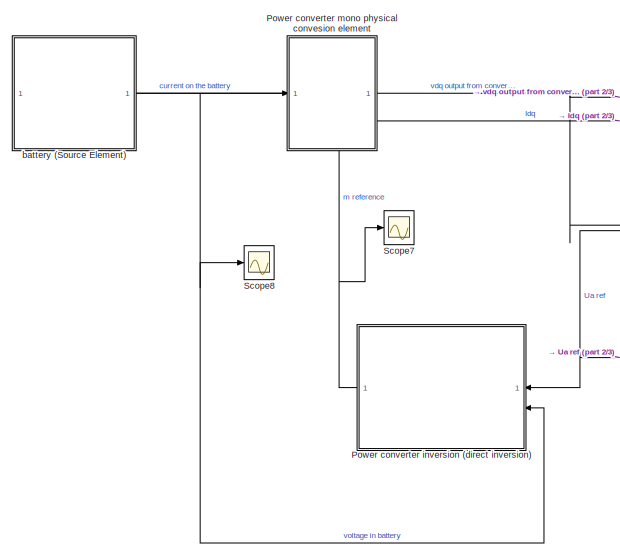
[diagram: root canvas - part 1/3, left side, full height]
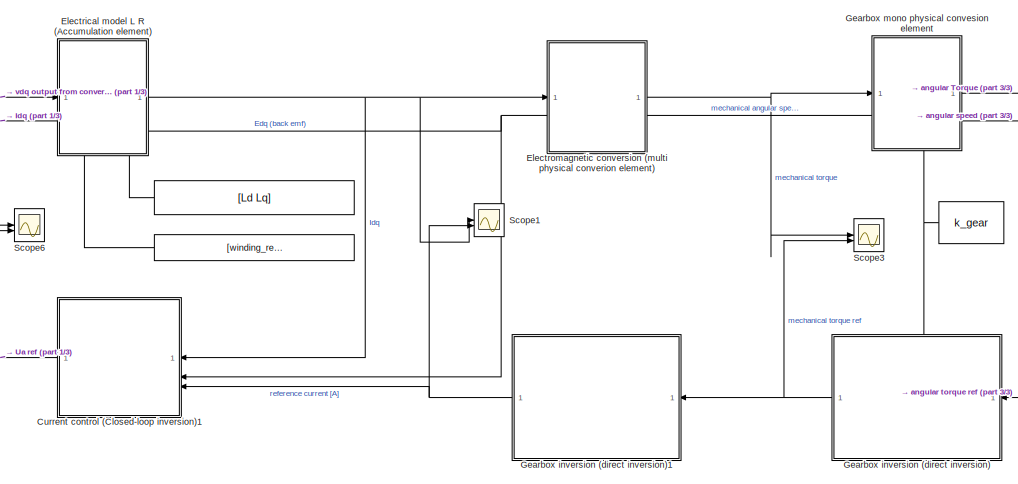
[diagram: root canvas - part 2/3, center side, full height]
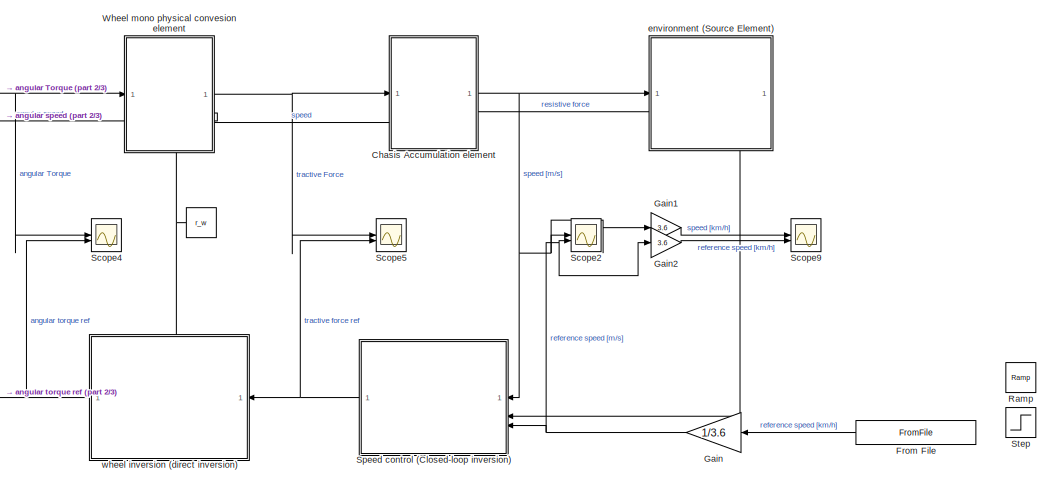
[diagram: root canvas - part 3/3, right side, full height]
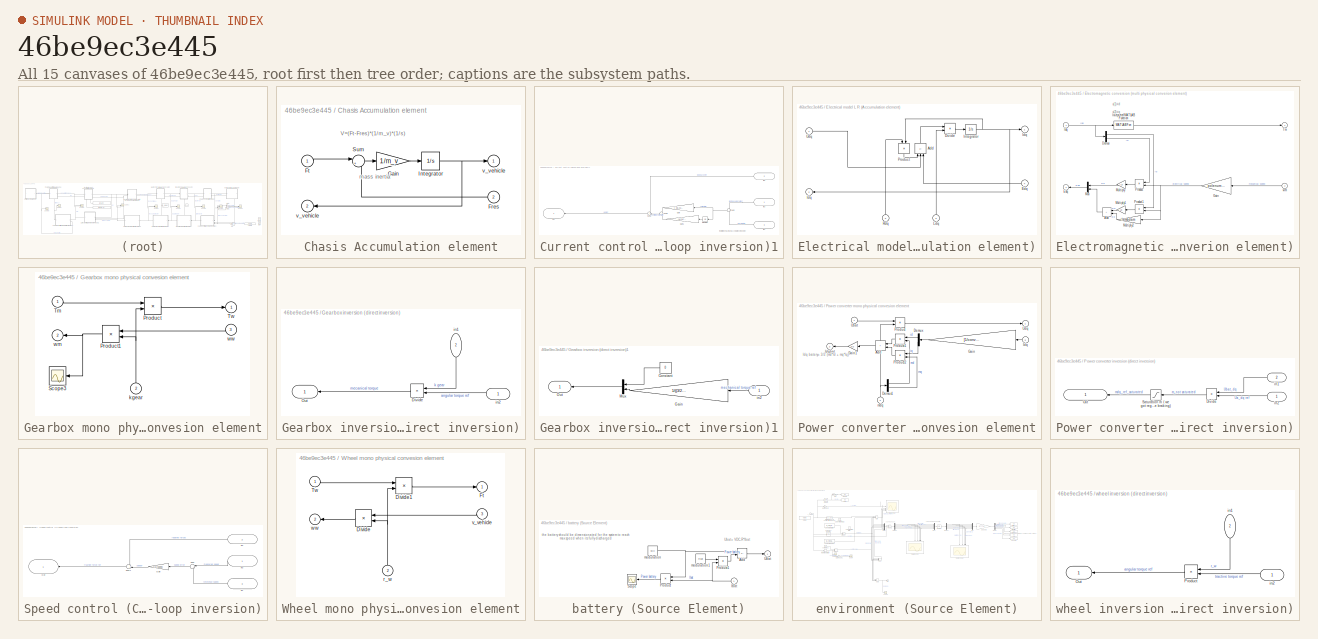
[diagram: thumbnail index - all 15 canvases of the model, root first then tree order]
MODEL slx_46be9ec3e445
KIND model
CONFIG AbsTol = auto
CONFIG EnableMultiTasking = off
CONFIG FixedStep = auto
CONFIG MaxStep = auto
CONFIG MinStep = auto
CONFIG RelTol = 1e-3
CONFIG SampleTimeConstraint = Unconstrained
CONFIG SolverName = VariableStepAuto
CONFIG StartTime = 0.0
CONFIG StopTime = sim_time
BLOCK [Constant]  
  Value = [winding_resistance winding_resistance]
BLOCK [Constant]   
  NameLocation = top
  Value = k_gear
BLOCK [Constant]    
  Value = [Ld Lq]
BLOCK [Constant]      
  NameLocation = top
  Value = r_w
BLOCK [SubSystem] Chasis Accumulation element
  LibrarySourceBlock = simulink/REM/EA
  NameLocation = top
  PortSchema = {"entries":[{"content":{"sides":[{"content":{"connectorIds":["In1","Out2"]},"type":"ConnectorPlacement.EquallySpacedRectSide","uuid":"dba36025-b2f5-41cb-9761-d1287a9766e1"},{"content":{"connectorIds":["Out1","In2"],"side":"RIGHT"},"type":"ConnectorPlacement.EquallySpacedRectSide","uuid":"3ae5e504-7b8f-4c00-bc0d-c89eccd87070"},{"content":{"side":"TOP"},"type":"ConnectorPlacement.EquallySpacedRectSi...<+235ch>
BLOCK [Inport] Chasis Accumulation element/Fres
  Port = 2
BLOCK [Inport] Chasis Accumulation element/Ft
BLOCK [Gain] Chasis Accumulation element/Gain
  Gain = 1/m_v
BLOCK [Integrator] Chasis Accumulation element/Integrator
BLOCK [Sum] Chasis Accumulation element/Sum
  Inputs = |+-
BLOCK [Outport] Chasis Accumulation element/v_vehicle
  InitialOutput = 0
  Port = 2
BLOCK [Outport] Chasis Accumulation element/v_vehicle 
  InitialOutput = 0
BLOCK [SubSystem] Current control (Closed-loop inversion)1
  LibrarySourceBlock = simulink/SMC/Asservissement\nCorrecteur IP
BLOCK [Gain] Current control (Closed-loop inversion)1/Gain
  Gain = [ Kp_current_d Kp_current_q]
  NameLocation = top
BLOCK [Gain] Current control (Closed-loop inversion)1/Gain1
  Gain = [Ki_current_d Ki_current_q]
  NameLocation = top
BLOCK [Integrator] Current control (Closed-loop inversion)1/Integrator
  NameLocation = top
BLOCK [Outport] Current control (Closed-loop inversion)1/Out
  IconDisplay = Port number and signal name
  InitialOutput = 0
BLOCK [Sum] Current control (Closed-loop inversion)1/Sum
  Inputs = -+
  NameLocation = top
BLOCK [Sum] Current control (Closed-loop inversion)1/Sum1
  Inputs = ++|
  NameLocation = top
BLOCK [Sum] Current control (Closed-loop inversion)1/Sum2
  NameLocation = top
BLOCK [Inport] Current control (Closed-loop inversion)1/in1
  IconDisplay = Port number and signal name
  NameLocation = top
  Port = 3
BLOCK [Inport] Current control (Closed-loop inversion)1/in3
  IconDisplay = Port number and signal name
  NameLocation = top
BLOCK [Inport] Current control (Closed-loop inversion)1/in5
  IconDisplay = Port number and signal name
  NameLocation = top
  Port = 2
BLOCK [SubSystem] Electrical model L R (Accumulation element)
  LibrarySourceBlock = simulink/REM/EA
  NameLocation = top
  PortSchema = {"entries":[{"content":{"sides":[{"content":{"connectorIds":["In1","Out2"]},"type":"ConnectorPlacement.EquallySpacedRectSide","uuid":"eb47d662-bb9b-4acd-af55-2a228b53d8b6"},{"content":{"connectorIds":["Out1","In4"],"side":"RIGHT"},"type":"ConnectorPlacement.EquallySpacedRectSide","uuid":"c961b4fe-0170-40df-8b75-bfc3223dfb7e"},{"content":{"side":"TOP"},"type":"ConnectorPlacement.EquallySpacedRectSi...<+390ch>
BLOCK [Sum] Electrical model L R (Accumulation element)/Add
  IconShape = rectangular
  Inputs = -+-
  NameLocation = right
BLOCK [Product] Electrical model L R (Accumulation element)/Divide
  Inputs = */
BLOCK [Inport] Electrical model L R (Accumulation element)/Edq
  Port = 4
BLOCK [Outport] Electrical model L R (Accumulation element)/Idq
  InitialOutput = 0
  Port = 2
BLOCK [Outport] Electrical model L R (Accumulation element)/Idq 
  InitialOutput = 0
BLOCK [Integrator] Electrical model L R (Accumulation element)/Integrator
BLOCK [Inport] Electrical model L R (Accumulation element)/Ldq
  NameLocation = right
  Port = 3
BLOCK [Product] Electrical model L R (Accumulation element)/Product
  NameLocation = left
BLOCK [Inport] Electrical model L R (Accumulation element)/Rdq
  NameLocation = left
  Port = 2
BLOCK [Inport] Electrical model L R (Accumulation element)/Udq
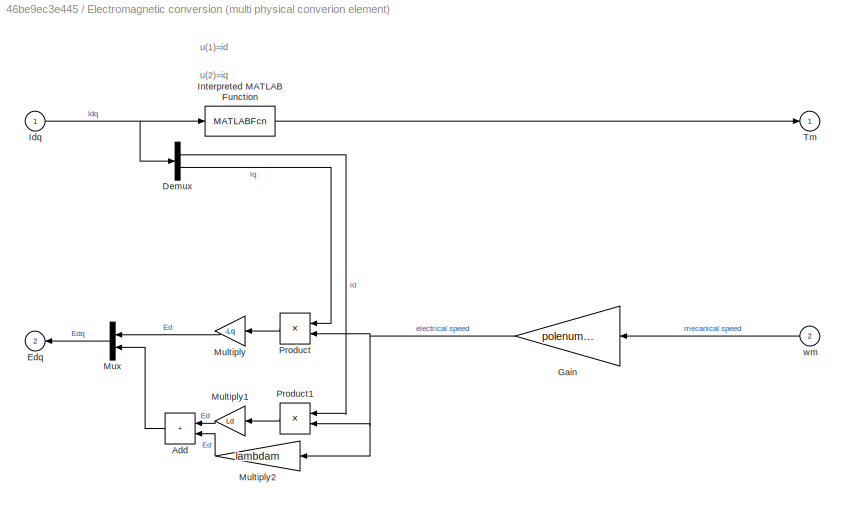
BLOCK [SubSystem] Electromagnetic conversion (multi physical converion element)
  LibrarySourceBlock = simulink/REM/EC EM
  NameLocation = top
  PortSchema = {"entries":[{"content":{"sides":[{"content":{"connectorIds":["In1","Out2"]},"type":"ConnectorPlacement.EquallySpacedRectSide","uuid":"eb47d662-bb9b-4acd-af55-2a228b53d8b6"},{"content":{"connectorIds":["Out1","In2"],"side":"RIGHT"},"type":"ConnectorPlacement.EquallySpacedRectSide","uuid":"c961b4fe-0170-40df-8b75-bfc3223dfb7e"},{"content":{"side":"TOP"},"type":"ConnectorPlacement.EquallySpacedRectSi...<+361ch>
BLOCK [Sum] Electromagnetic conversion (multi physical converion element)/Add
  IconShape = rectangular
  NameLocation = top
BLOCK [Demux] Electromagnetic conversion (multi physical converion element)/Demux
  Outputs = 2
BLOCK [Outport] Electromagnetic conversion (multi physical converion element)/Edq
  InitialOutput = 0
  Port = 2
BLOCK [Gain] Electromagnetic conversion (multi physical converion element)/Gain
  Gain = polenumber/2
  NameLocation = top
BLOCK [Inport] Electromagnetic conversion (multi physical converion element)/Idq
BLOCK [MATLABFcn] Electromagnetic conversion (multi physical converion element)/Interpreted MATLAB Function
  MATLABFcn = (3/2)*polenumber/2*(lambdam*u(2)+(Ld-Lq)*u(1)*u(2))
  OutputDimensions = 1
BLOCK [Gain] Electromagnetic conversion (multi physical converion element)/Multiply
  Gain = -Lq
  NameLocation = top
BLOCK [Gain] Electromagnetic conversion (multi physical converion element)/Multiply1
  Gain = Ld
  NameLocation = top
BLOCK [Gain] Electromagnetic conversion (multi physical converion element)/Multiply2
  Gain = lambdam
  NameLocation = top
BLOCK [Mux] Electromagnetic conversion (multi physical converion element)/Mux
  DisplayOption = bar
  Inputs = 2
  NameLocation = top
BLOCK [Product] Electromagnetic conversion (multi physical converion element)/Product
  NameLocation = top
BLOCK [Product] Electromagnetic conversion (multi physical converion element)/Product1
  NameLocation = top
BLOCK [Outport] Electromagnetic conversion (multi physical converion element)/Tm 
  InitialOutput = 0
BLOCK [Inport] Electromagnetic conversion (multi physical converion element)/wm
  Port = 2
BLOCK [FromFile] From File
  FileName = NEDC_profile_copy.mat
  NameLocation = top
  SampleTime = 0
BLOCK [Gain] Gain
  Gain = 1/3.6
  NameLocation = top
BLOCK [Gain] Gain1
  Gain = 3.6
BLOCK [Gain] Gain2
  Gain = 3.6
BLOCK [SubSystem] Gearbox inversion (direct inversion)
  LibrarySourceBlock = simulink/SMC/Inversion EC\navec mesure
  PortSchema = {"entries":[{"content":{"sides":[{"content":{"connectorIds":["In1"]},"type":"ConnectorPlacement.EquallySpacedRectSide","uuid":"89460601-ef91-4e28-89d9-1739ebd446c6"},{"content":{"connectorIds":["Out1"],"side":"RIGHT"},"type":"ConnectorPlacement.EquallySpacedRectSide","uuid":"1ce34b6b-3a45-4c28-907b-ce0af421135c"},{"content":{"connectorIds":["In2"],"side":"TOP"},"type":"ConnectorPlacement.EquallySp...<+245ch>
BLOCK [Product] Gearbox inversion (direct inversion)/Divide
  Inputs = /*
  NameLocation = top
BLOCK [Outport] Gearbox inversion (direct inversion)/Out
  IconDisplay = Port number and signal name
  InitialOutput = 0
BLOCK [Inport] Gearbox inversion (direct inversion)/in1
  IconDisplay = Port number and signal name
  NameLocation = left
  Port = 2
BLOCK [Inport] Gearbox inversion (direct inversion)/in2
  IconDisplay = Port number and signal name
  NameLocation = top
BLOCK [SubSystem] Gearbox inversion (direct inversion)1
  LibrarySourceBlock = simulink/SMC/Inversion EC\navec mesure
BLOCK [Constant] Gearbox inversion (direct inversion)1/Constant
  NameLocation = top
  Value = 0
BLOCK [Gain] Gearbox inversion (direct inversion)1/Gain
  Gain = 1/((3/2)*(polenumber/2)*lambdam)
  NameLocation = top
BLOCK [Mux] Gearbox inversion (direct inversion)1/Mux
  DisplayOption = bar
  Inputs = 2
  NameLocation = top
BLOCK [Outport] Gearbox inversion (direct inversion)1/Out
  IconDisplay = Port number and signal name
  InitialOutput = 0
BLOCK [Inport] Gearbox inversion (direct inversion)1/in2
  IconDisplay = Port number and signal name
  NameLocation = top
BLOCK [SubSystem] Gearbox mono physical convesion element
  LibrarySourceBlock = simulink/REM/EC Elec
  NameLocation = top
  PortSchema = {"entries":[{"content":{"sides":[{"content":{"connectorIds":["In1","Out2"]},"type":"ConnectorPlacement.EquallySpacedRectSide","uuid":"add9fadb-0fb4-43ab-a2d0-7727804eb2c0"},{"content":{"connectorIds":["Out1","In3"],"side":"RIGHT"},"type":"ConnectorPlacement.EquallySpacedRectSide","uuid":"87b3f5c0-7da9-421a-ae8a-66afee038ab7"},{"content":{"side":"TOP"},"type":"ConnectorPlacement.EquallySpacedRectSi...<+384ch>  <repeated x3 — deduplicated; at blocks: Gearbox mono physical convesion element, Power converter mono physical convesion element, Wheel mono physical convesion element>
BLOCK [Product] Gearbox mono physical convesion element/Product
BLOCK [Product] Gearbox mono physical convesion element/Product1
  NameLocation = top
BLOCK [Scope] Gearbox mono physical convesion element/Scope3
  Floating = off
  NameLocation = top
  NumInputPorts = 2
  ScopeSpecificationString = Simulink.scopes.TimeScopeBlockCfg('CurrentConfiguration', extmgr.ConfigurationSet(extmgr.Configuration('Core','General UI',true),extmgr.Configuration('Core','Source UI',true),extmgr.Configuration('Sources','WiredSimulink',true,'DataLoggingVariableName','ScopeData2'),extmgr.Configuration('Visuals','Time Domain',true,'SerializedDisplays',{struct('MinYLimReal','-40.33559','MaxYLimReal','363.02033','Y...<+1820ch>
BLOCK [Inport] Gearbox mono physical convesion element/Tm
BLOCK [Outport] Gearbox mono physical convesion element/Tw 
  InitialOutput = 0
BLOCK [Inport] Gearbox mono physical convesion element/kgear
  NameLocation = right
  Port = 2
BLOCK [Outport] Gearbox mono physical convesion element/wm
  InitialOutput = 0
  Port = 2
BLOCK [Inport] Gearbox mono physical convesion element/ww
  Port = 3
BLOCK [SubSystem] Power converter inversion (direct inversion)
  LibrarySourceBlock = simulink/SMC/Inversion EC\navec mesure
BLOCK [Product] Power converter inversion (direct inversion)/Divide
  Inputs = /*
  NameLocation = top
BLOCK [Outport] Power converter inversion (direct inversion)/Out
  IconDisplay = Port number and signal name
  InitialOutput = 0
BLOCK [Saturate] Power converter inversion (direct inversion)/Saturation m ( we got regenerative braking)
  LowerLimit = -1
  NameLocation = top
  UpperLimit = 1
BLOCK [Inport] Power converter inversion (direct inversion)/in1
  IconDisplay = Port number and signal name
  NameLocation = top
  Port = 2
BLOCK [Inport] Power converter inversion (direct inversion)/in2
  IconDisplay = Port number and signal name
  NameLocation = top
BLOCK [SubSystem] Power converter mono physical convesion element
  LibrarySourceBlock = simulink/REM/EC Elec
  NameLocation = top
BLOCK [Sum] Power converter mono physical convesion element/Add
  IconShape = rectangular
  NameLocation = top
BLOCK [Demux] Power converter mono physical convesion element/Demux
  NameLocation = top
  Outputs = 2
BLOCK [Demux] Power converter mono physical convesion element/Demux1
  Outputs = 2
BLOCK [Gain] Power converter mono physical convesion element/Gain
  Gain = [1/converter_efficiency 1/converter_efficiency]
  NameLocation = top
BLOCK [Gain] Power converter mono physical convesion element/Gain1
  Gain = 3/2
  NameLocation = top
BLOCK [Inport] Power converter mono physical convesion element/Idq
  Port = 3
BLOCK [Outport] Power converter mono physical convesion element/Idqbat  
  InitialOutput = 0
  Port = 2
BLOCK [Product] Power converter mono physical convesion element/Product
BLOCK [Product] Power converter mono physical convesion element/Product1
  NameLocation = top
BLOCK [Product] Power converter mono physical convesion element/Product2
  NameLocation = top
BLOCK [Inport] Power converter mono physical convesion element/Ubat
BLOCK [Outport] Power converter mono physical convesion element/Udq 
  InitialOutput = 0
BLOCK [Inport] Power converter mono physical convesion element/mdq
  NameLocation = right
  Port = 2
BLOCK [Reference] Ramp  REF=simulink/Sources/Ramp
  NameLocation = top
  SourceBlock = simulink/Sources/Ramp
  SourceType = Ramp
BLOCK [Scope] Scope1
  Floating = off
  NumInputPorts = 2
  ScopeSpecificationString = Simulink.scopes.TimeScopeBlockCfg('CurrentConfiguration', extmgr.ConfigurationSet(extmgr.Configuration('Core','General UI',true),extmgr.Configuration('Core','Source UI',true),extmgr.Configuration('Sources','WiredSimulink',true,'DataLoggingVariableName','ScopeData1'),extmgr.Configuration('Visuals','Time Domain',true,'SerializedDisplays',{struct('MinYLimReal','23.62213','MaxYLimReal','23.99874','YLa...<+1834ch>
BLOCK [Scope] Scope2
  Floating = off
  NumInputPorts = 2
  ScopeSpecificationString = Simulink.scopes.TimeScopeBlockCfg('CurrentConfiguration', extmgr.ConfigurationSet(extmgr.Configuration('Core','General UI',true),extmgr.Configuration('Core','Source UI',true),extmgr.Configuration('Sources','WiredSimulink',true,'DataLoggingVariableName','ScopeData1'),extmgr.Configuration('Visuals','Time Domain',true,'SerializedDisplays',{struct('MinYLimReal','-0.34722','MaxYLimReal','3.125','YLabel...<+1790ch>
BLOCK [Scope] Scope3
  Floating = off
  NumInputPorts = 2
  ScopeSpecificationString = Simulink.scopes.TimeScopeBlockCfg('CurrentConfiguration', extmgr.ConfigurationSet(extmgr.Configuration('Core','General UI',true),extmgr.Configuration('Core','Source UI',true),extmgr.Configuration('Sources','WiredSimulink',true,'DataLoggingVariableName','ScopeData2'),extmgr.Configuration('Visuals','Time Domain',true,'SerializedDisplays',{struct('MinYLimReal','-22.30343','MaxYLimReal','28.87623','YL...<+1813ch>
BLOCK [Scope] Scope4
  Floating = off
  NumInputPorts = 2
  ScopeSpecificationString = Simulink.scopes.TimeScopeBlockCfg('CurrentConfiguration', extmgr.ConfigurationSet(extmgr.Configuration('Core','General UI',true),extmgr.Configuration('Core','Source UI',true),extmgr.Configuration('Sources','WiredSimulink',true,'DataLoggingVariableName','ScopeData3'),extmgr.Configuration('Visuals','Time Domain',true,'SerializedDisplays',{struct('MinYLimReal','-18246.55744','MaxYLimReal','29363.9930...<+1854ch>
BLOCK [Scope] Scope5
  Floating = off
  NumInputPorts = 2
  ScopeSpecificationString = Simulink.scopes.TimeScopeBlockCfg('CurrentConfiguration', extmgr.ConfigurationSet(extmgr.Configuration('Core','General UI',true),extmgr.Configuration('Core','Source UI',true),extmgr.Configuration('Sources','WiredSimulink',true,'DataLoggingVariableName','ScopeData4'),extmgr.Configuration('Visuals','Time Domain',true,'SerializedDisplays',{struct('MinYLimReal','-8538.27255','MaxYLimReal','63224.99263...<+2110ch>
BLOCK [Scope] Scope6
  Floating = off
  NumInputPorts = 2
  ScopeSpecificationString = Simulink.scopes.TimeScopeBlockCfg('CurrentConfiguration', extmgr.ConfigurationSet(extmgr.Configuration('Core','General UI',true),extmgr.Configuration('Core','Source UI',true),extmgr.Configuration('Sources','WiredSimulink',true,'DataLoggingVariableName','ScopeData5'),extmgr.Configuration('Visuals','Time Domain',true,'SerializedDisplays',{struct('MinYLimReal','-50.00000','MaxYLimReal','450.00000','Y...<+1479ch>
BLOCK [Scope] Scope7
  Floating = off
  NumInputPorts = 1
  ScopeSpecificationString = Simulink.scopes.TimeScopeBlockCfg('CurrentConfiguration', extmgr.ConfigurationSet(extmgr.Configuration('Core','General UI',true),extmgr.Configuration('Core','Source UI',true),extmgr.Configuration('Sources','WiredSimulink',true,'DataLoggingVariableName','ScopeData1'),extmgr.Configuration('Visuals','Time Domain',true,'SerializedDisplays',{struct('MinYLimReal','-0.14964','MaxYLimReal','1.12774','YLab...<+1441ch>
BLOCK [Scope] Scope8
  Floating = off
  NumInputPorts = 1
  ScopeSpecificationString = Simulink.scopes.TimeScopeBlockCfg('CurrentConfiguration', extmgr.ConfigurationSet(extmgr.Configuration('Core','General UI',true),extmgr.Configuration('Core','Source UI',true),extmgr.Configuration('Sources','WiredSimulink',true,'DataLoggingVariableName','ScopeData2'),extmgr.Configuration('Visuals','Time Domain',true,'SerializedDisplays',{struct('MinYLimReal','395.78171','MaxYLimReal','404.65426','Y...<+1462ch>
BLOCK [Scope] Scope9
  Floating = off
  NumInputPorts = 2
  ScopeSpecificationString = Simulink.scopes.TimeScopeBlockCfg('CurrentConfiguration', extmgr.ConfigurationSet(extmgr.Configuration('Core','General UI',true),extmgr.Configuration('Core','Source UI',true),extmgr.Configuration('Sources','WiredSimulink',true,'DataLoggingVariableName','ScopeData1'),extmgr.Configuration('Visuals','Time Domain',true,'SerializedDisplays',{struct('MinYLimReal','-4.16669','MaxYLimReal','37.5','YLabelR...<+1776ch>
BLOCK [SubSystem] Speed control (Closed-loop inversion)
  LibrarySourceBlock = simulink/SMC/Asservissement\nCorrecteur IP
BLOCK [Gain] Speed control (Closed-loop inversion)/Gain
  Gain = Kp_speed
  NameLocation = top
BLOCK [Outport] Speed control (Closed-loop inversion)/Out
  IconDisplay = Port number and signal name
  InitialOutput = 0
BLOCK [Sum] Speed control (Closed-loop inversion)/Sum
  Inputs = -+
  NameLocation = top
BLOCK [Sum] Speed control (Closed-loop inversion)/Sum1
  Inputs = ++|
  NameLocation = top
BLOCK [Inport] Speed control (Closed-loop inversion)/in1
  IconDisplay = Port number and signal name
  NameLocation = top
  Port = 3
BLOCK [Inport] Speed control (Closed-loop inversion)/in2
  IconDisplay = Port number and signal name
  NameLocation = top
  Port = 2
BLOCK [Inport] Speed control (Closed-loop inversion)/in3
  IconDisplay = Port number and signal name
  NameLocation = top
BLOCK [Step] Step
  After = 10
  NameLocation = top
  SampleTime = 0
BLOCK [SubSystem] Wheel mono physical convesion element
  LibrarySourceBlock = simulink/REM/EC Elec
  NameLocation = top
BLOCK [Product] Wheel mono physical convesion element/Divide
  Inputs = */
  NameLocation = top
BLOCK [Product] Wheel mono physical convesion element/Divide1
  Inputs = */
BLOCK [Outport] Wheel mono physical convesion element/Ft 
  InitialOutput = 0
BLOCK [Inport] Wheel mono physical convesion element/Tw
BLOCK [Inport] Wheel mono physical convesion element/r_w
  NameLocation = right
  Port = 2
BLOCK [Inport] Wheel mono physical convesion element/v_vehicle
  Port = 3
BLOCK [Outport] Wheel mono physical convesion element/ww
  InitialOutput = 0
  Port = 2
BLOCK [SubSystem] battery (Source Element)
  LibrarySourceBlock = simulink/REM/SE
  NameLocation = top
  PortSchema = {"entries":[{"content":{"sides":[{"content":{"connectorIds":["In1","Out1"]},"type":"ConnectorPlacement.EquallySpacedRectSide","uuid":"5172ac9f-d5c1-4cd8-b96a-59474b42a5b1"},{"content":{"side":"RIGHT"},"type":"ConnectorPlacement.EquallySpacedRectSide","uuid":"2f1e5561-012a-4a4f-9618-a2ea7815b4bb"},{"content":{"side":"TOP"},"type":"ConnectorPlacement.EquallySpacedRectSide","uuid":"04863bbd-e2a6-484f...<+205ch>
BLOCK [Sum] battery (Source Element)/Add
  IconShape = rectangular
  Inputs = +-
BLOCK [Inport] battery (Source Element)/Ibat
  NameLocation = top
BLOCK [Product] battery (Source Element)/Product
  NameLocation = top
BLOCK [Product] battery (Source Element)/Product1
  Commented = on
BLOCK [Scope] battery (Source Element)/Scope
  Floating = off
  NameLocation = top
  NumInputPorts = 1
  ScopeSpecificationString = Simulink.scopes.TimeScopeBlockCfg('CurrentConfiguration', extmgr.ConfigurationSet(extmgr.Configuration('Core','General UI',true),extmgr.Configuration('Core','Source UI',true),extmgr.Configuration('Sources','WiredSimulink',true,'DataLoggingVariableName','ScopeData1'),extmgr.Configuration('Visuals','Time Domain',true,'SerializedDisplays',{struct('MinYLimReal','-18617.03235','MaxYLimReal','16873.1603...<+1456ch>
BLOCK [Outport] battery (Source Element)/Ubat
  InitialOutput = 0
BLOCK [Constant] battery (Source Element)/modulation
  Value = VDC
BLOCK [Constant] battery (Source Element)/modulation1
  Commented = on
  Value = Rbat
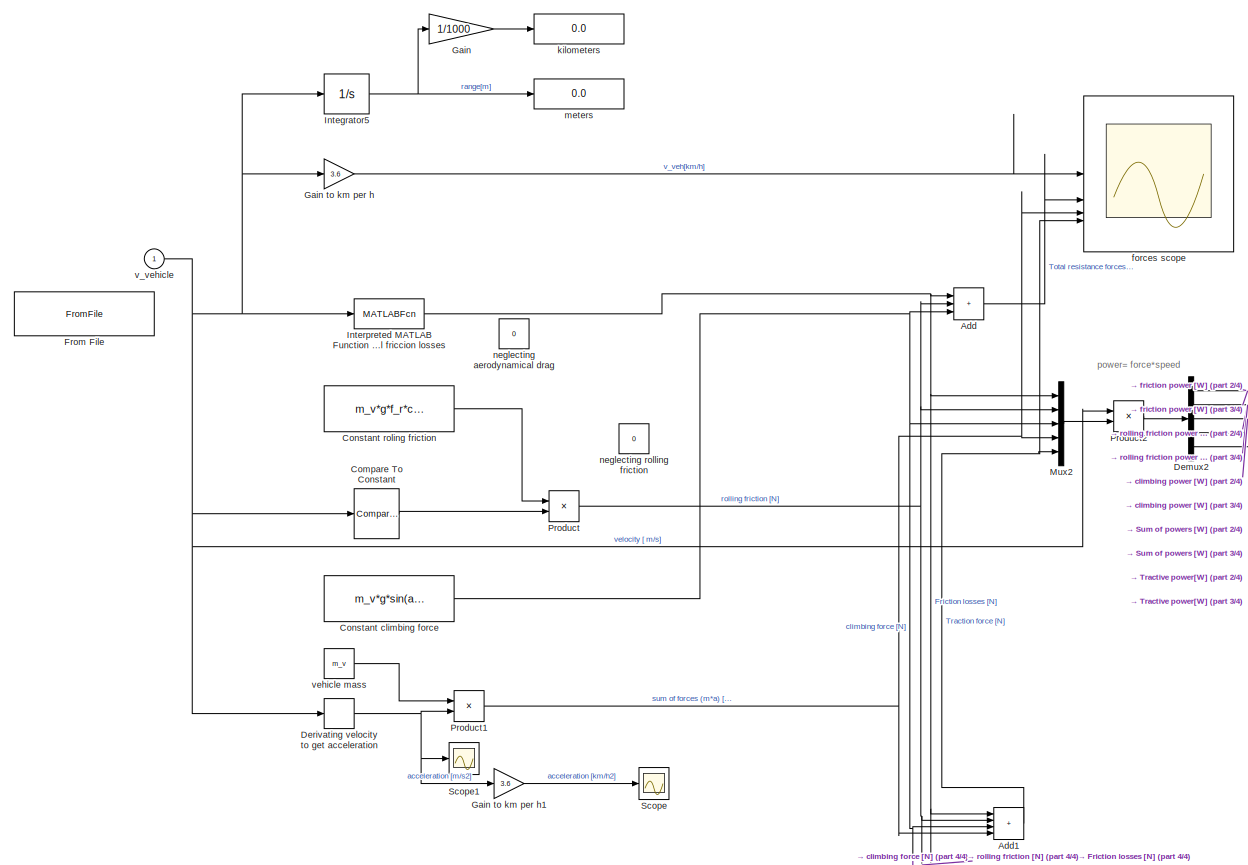
[diagram: environment (Source Element) - part 1/4, middle left region]
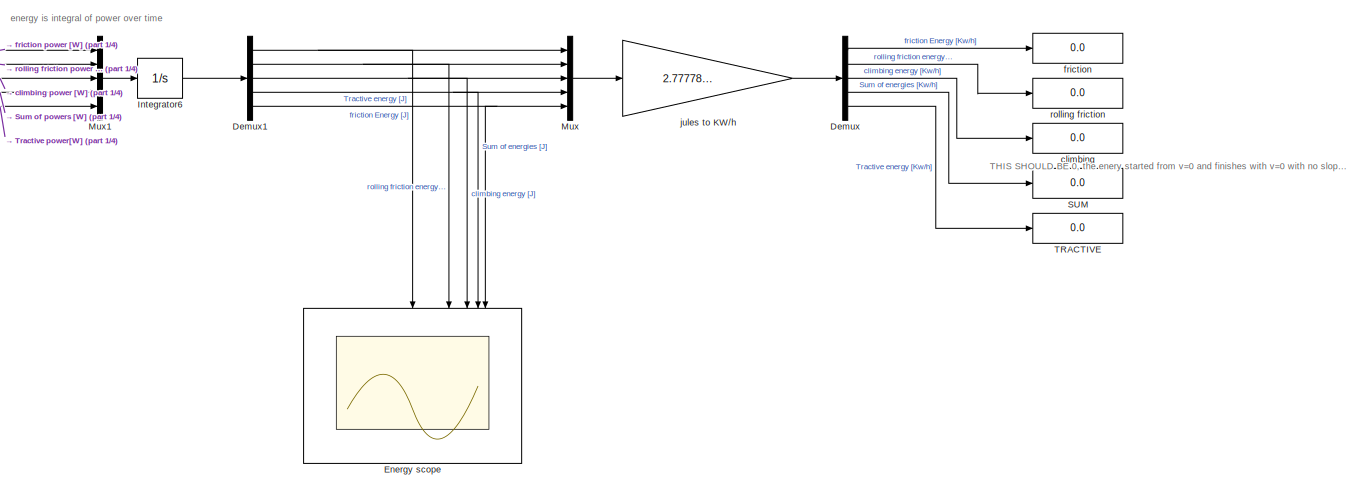
[diagram: environment (Source Element) - part 2/4, middle right region]
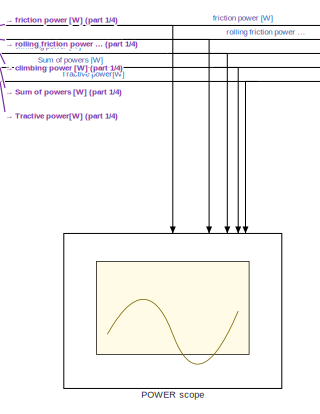
[diagram: environment (Source Element) - part 3/4, central region]
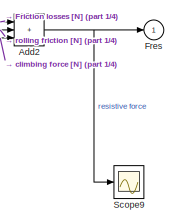
[diagram: environment (Source Element) - part 4/4, bottom center region]
BLOCK [SubSystem] environment (Source Element)
  LibrarySourceBlock = simulink/REM/SE
  NameLocation = top
  PortSchema = {"entries":[{"content":{"sides":[{"content":{"connectorIds":["In1","Out1"]},"type":"ConnectorPlacement.EquallySpacedRectSide","uuid":"5172ac9f-d5c1-4cd8-b96a-59474b42a5b1"},{"content":{"side":"RIGHT"},"type":"ConnectorPlacement.EquallySpacedRectSide","uuid":"2f1e5561-012a-4a4f-9618-a2ea7815b4bb"},{"content":{"side":"TOP"},"type":"ConnectorPlacement.EquallySpacedRectSide","uuid":"04863bbd-e2a6-484f...<+205ch>
BLOCK [Sum] environment (Source Element)/Add
  IconShape = rectangular
  Inputs = +++
BLOCK [Sum] environment (Source Element)/Add1
  IconShape = rectangular
  Inputs = ++++
BLOCK [Sum] environment (Source Element)/Add2
  IconShape = rectangular
  Inputs = +++
BLOCK [Reference] environment (Source Element)/Compare To Constant  REF=simulink/Logic and Bit
Operations/Compare
To Constant
  SourceBlock = simulink/Logic and Bit\nOperations/Compare\nTo Constant
  SourceType = Compare To Constant
BLOCK [Constant] environment (Source Element)/Constant climbing force
  Value = m_v*g*sin(angle_road)
BLOCK [Constant] environment (Source Element)/Constant roling friction
  Value = m_v*g*f_r*cos(angle_road)
BLOCK [Demux] environment (Source Element)/Demux
  Outputs = 5
BLOCK [Demux] environment (Source Element)/Demux1
  Outputs = 5
BLOCK [Demux] environment (Source Element)/Demux2
  Outputs = 5
BLOCK [Derivative] environment (Source Element)/Derivating velocity to get acceleration
BLOCK [Scope] environment (Source Element)/Energy scope
  Floating = off
  NumInputPorts = 5
  ScopeSpecificationString = Simulink.scopes.TimeScopeBlockCfg('CurrentConfiguration', extmgr.ConfigurationSet(extmgr.Configuration('Core','General UI',true),extmgr.Configuration('Core','Source UI',true),extmgr.Configuration('Sources','WiredSimulink',true,'DataLoggingVariableName','ScopeData1'),extmgr.Configuration('Visuals','Time Domain',true,'SerializedDisplays',{struct('MinYLimReal','-93159.7928','MaxYLimReal','838438.1351...<+2080ch>
BLOCK [Outport] environment (Source Element)/Fres
  InitialOutput = 0
BLOCK [FromFile] environment (Source Element)/From File
  Commented = on
  FileName = NEDC_profile.mat
  SampleTime = 0
BLOCK [Gain] environment (Source Element)/Gain
  Gain = 1/1000
BLOCK [Gain] environment (Source Element)/Gain to km per h
  Gain = 3.6
BLOCK [Gain] environment (Source Element)/Gain to km per h1
  Gain = 3.6
BLOCK [Integrator] environment (Source Element)/Integrator5
BLOCK [Integrator] environment (Source Element)/Integrator6
BLOCK [MATLABFcn] environment (Source Element)/Interpreted MATLAB Function Aerodinamical friccion losses
  MATLABFcn = (1/2)*air_dens*A_f*C_d*((u(1)-wind_speed)^2)
BLOCK [Mux] environment (Source Element)/Mux
  DisplayOption = bar
  Inputs = 5
BLOCK [Mux] environment (Source Element)/Mux1
  DisplayOption = bar
  Inputs = 5
BLOCK [Mux] environment (Source Element)/Mux2
  DisplayOption = bar
  Inputs = 5
BLOCK [Scope] environment (Source Element)/POWER scope
  Floating = off
  NumInputPorts = 5
  ScopeSpecificationString = Simulink.scopes.TimeScopeBlockCfg('CurrentConfiguration', extmgr.ConfigurationSet(extmgr.Configuration('Core','General UI',true),extmgr.Configuration('Core','Source UI',true),extmgr.Configuration('Sources','WiredSimulink',true,'DataLoggingVariableName','ScopeData2'),extmgr.Configuration('Visuals','Time Domain',true,'SerializedDisplays',{struct('MinYLimReal','-243.07641','MaxYLimReal','2187.68769',...<+2147ch>
BLOCK [Product] environment (Source Element)/Product
BLOCK [Product] environment (Source Element)/Product1
BLOCK [Product] environment (Source Element)/Product2
BLOCK [Display] environment (Source Element)/SUM 
  Decimation = 1
  NameLocation = right
BLOCK [Scope] environment (Source Element)/Scope
  Floating = off
  NumInputPorts = 1
  ScopeSpecificationString = Simulink.scopes.TimeScopeBlockCfg('CurrentConfiguration', extmgr.ConfigurationSet(extmgr.Configuration('Core','General UI',true),extmgr.Configuration('Core','Source UI',true),extmgr.Configuration('Sources','WiredSimulink',true,'DataLoggingVariableName','ScopeData1'),extmgr.Configuration('Visuals','Time Domain',true,'SerializedDisplays',{struct('MinYLimReal','4.4472','MaxYLimReal','8.73281','YLabel...<+1746ch>
BLOCK [Scope] environment (Source Element)/Scope1
  Floating = off
  NumInputPorts = 1
  ScopeSpecificationString = Simulink.scopes.TimeScopeBlockCfg('CurrentConfiguration', extmgr.ConfigurationSet(extmgr.Configuration('Core','General UI',true),extmgr.Configuration('Core','Source UI',true),extmgr.Configuration('Sources','WiredSimulink',true,'DataLoggingVariableName','ScopeData1'),extmgr.Configuration('Visuals','Time Domain',true,'SerializedDisplays',{struct('MinYLimReal','2.03699','MaxYLimReal','2.18066','YLabe...<+1749ch>
BLOCK [Scope] environment (Source Element)/Scope9
  Floating = off
  NumInputPorts = 2
  ScopeSpecificationString = Simulink.scopes.TimeScopeBlockCfg('CurrentConfiguration', extmgr.ConfigurationSet(extmgr.Configuration('Core','General UI',true),extmgr.Configuration('Core','Source UI',true),extmgr.Configuration('Sources','WiredSimulink',true,'DataLoggingVariableName','ScopeData1'),extmgr.Configuration('Visuals','Time Domain',true,'SerializedDisplays',{struct('MinYLimReal','-1.00000','MaxYLimReal','1.00000','YLab...<+2095ch>
BLOCK [Display] environment (Source Element)/TRACTIVE
  Decimation = 1
  NameLocation = right
BLOCK [Display] environment (Source Element)/climbing
  Decimation = 1
  NameLocation = right
BLOCK [Scope] environment (Source Element)/forces scope
  Floating = off
  NumInputPorts = 4
  ScopeSpecificationString = Simulink.scopes.TimeScopeBlockCfg('CurrentConfiguration', extmgr.ConfigurationSet(extmgr.Configuration('Core','General UI',true),extmgr.Configuration('Core','Source UI',true),extmgr.Configuration('Sources','WiredSimulink',true,'DataLoggingVariableName','ScopeData3'),extmgr.Configuration('Visuals','Time Domain',true,'SerializedDisplays',{struct('MinYLimReal','60.00699','MaxYLimReal','60.72897','YLa...<+3532ch>
BLOCK [Display] environment (Source Element)/friction
  Decimation = 1
  NameLocation = right
BLOCK [Gain] environment (Source Element)/jules to KW//h
  Gain = 2.77778e-7
BLOCK [Display] environment (Source Element)/kilometers
  Decimation = 1
BLOCK [Display] environment (Source Element)/meters
  Decimation = 1
BLOCK [Constant] environment (Source Element)/neglecting aerodynamical drag
  Value = 0
BLOCK [Constant] environment (Source Element)/neglecting rolling friction
  Value = 0
BLOCK [Display] environment (Source Element)/rolling friction 
  Decimation = 1
  NameLocation = right
BLOCK [Inport] environment (Source Element)/v_vehicle
BLOCK [Constant] environment (Source Element)/vehicle mass
  Value = m_v
BLOCK [SubSystem] wheel inversion (direct inversion)
  LibrarySourceBlock = simulink/SMC/Inversion EC\navec mesure
  PortSchema = {"entries":[{"content":{"sides":[{"content":{"connectorIds":["In1"]},"type":"ConnectorPlacement.EquallySpacedRectSide","uuid":"89460601-ef91-4e28-89d9-1739ebd446c6"},{"content":{"connectorIds":["Out1"],"side":"RIGHT"},"type":"ConnectorPlacement.EquallySpacedRectSide","uuid":"1ce34b6b-3a45-4c28-907b-ce0af421135c"},{"content":{"connectorIds":["In2"],"side":"TOP"},"type":"ConnectorPlacement.EquallySp...<+245ch>
BLOCK [Outport] wheel inversion (direct inversion)/Out
  IconDisplay = Port number and signal name
  InitialOutput = 0
BLOCK [Product] wheel inversion (direct inversion)/Product
  NameLocation = top
BLOCK [Inport] wheel inversion (direct inversion)/in1
  IconDisplay = Port number and signal name
  NameLocation = left
  Port = 2
BLOCK [Inport] wheel inversion (direct inversion)/in2
  IconDisplay = Port number and signal name
  NameLocation = top
ANNOTATION Chasis Accumulation element: V=(Ft-Fres)*(1/m_v)*(1/s)
ANNOTATION Chasis Accumulation element: mass inertia
ANNOTATION Current control (Closed-loop inversion)1: this limits the maximum acceleration o this motor
ANNOTATION Electromagnetic conversion (multi physical converion element): u(1)=id
ANNOTATION Electromagnetic conversion (multi physical converion element): u(2)=iq
ANNOTATION Power converter mono physical convesion element: Idq batery= 3/2 (md*Id + mq*Iq)
ANNOTATION battery (Source Element): Ubat= VDC-R*Ibat
ANNOTATION battery (Source Element): the battery should be dimensionated for the system to reach max speed when its fully discharged
ANNOTATION environment (Source Element): THIS SHOULD BE 0, the enery started from v=0 and finishes with v=0 with no slope. we have a matlab numerical approach step time error
ANNOTATION environment (Source Element): energy is integral of power over time
ANNOTATION environment (Source Element): power= force*speed
NET      :1 -> Wheel mono physical convesion element:2, wheel inversion (direct inversion):2
LINE    :1 -> Electrical model L R (Accumulation element):3
NET   :1 -> Gearbox inversion (direct inversion):2, Gearbox mono physical convesion element:2
LINE  :1 -> Electrical model L R (Accumulation element):2
LINE Chasis Accumulation element/Fres:1 -> Chasis Accumulation element/Sum:2
LINE Chasis Accumulation element/Ft:1 -> Chasis Accumulation element/Sum:1
LINE Chasis Accumulation element/Gain:1 -> Chasis Accumulation element/Integrator:1
NET Chasis Accumulation element/Integrator:1 -> Chasis Accumulation element/v_vehicle :1, Chasis Accumulation element/v_vehicle:1
LINE Chasis Accumulation element/Sum:1 -> Chasis Accumulation element/Gain:1
NET Chasis Accumulation element:1 -> Gain1:1, Scope2:1, Speed control (Closed-loop inversion):1, environment (Source Element):1
LINE Chasis Accumulation element:2 -> Wheel mono physical convesion element:3
LINE Current control (Closed-loop inversion)1/Gain1:1 -> Current control (Closed-loop inversion)1/Sum2:2
LINE Current control (Closed-loop inversion)1/Gain:1 -> Current control (Closed-loop inversion)1/Sum2:1
LINE Current control (Closed-loop inversion)1/Integrator:1 -> Current control (Closed-loop inversion)1/Gain1:1
LINE Current control (Closed-loop inversion)1/Sum1:1 -> Current control (Closed-loop inversion)1/Out:1
LINE Current control (Closed-loop inversion)1/Sum2:1 -> Current control (Closed-loop inversion)1/Sum1:2
NET Current control (Closed-loop inversion)1/Sum:1 -> Current control (Closed-loop inversion)1/Gain:1, Current control (Closed-loop inversion)1/Integrator:1
LINE Current control (Closed-loop inversion)1/in1:1 -> Current control (Closed-loop inversion)1/Sum:2
LINE Current control (Closed-loop inversion)1/in3:1 -> Current control (Closed-loop inversion)1/Sum:1
LINE Current control (Closed-loop inversion)1/in5:1 -> Current control (Closed-loop inversion)1/Sum1:1
NET Current control (Closed-loop inversion)1:1 -> Power converter inversion (direct inversion):1, Scope6:2
LINE Electrical model L R (Accumulation element)/Add:1 -> Electrical model L R (Accumulation element)/Divide:1
LINE Electrical model L R (Accumulation element)/Divide:1 -> Electrical model L R (Accumulation element)/Integrator:1
LINE Electrical model L R (Accumulation element)/Edq:1 -> Electrical model L R (Accumulation element)/Add:3
NET Electrical model L R (Accumulation element)/Integrator:1 -> Electrical model L R (Accumulation element)/Idq :1, Electrical model L R (Accumulation element)/Idq:1, Electrical model L R (Accumulation element)/Product:2
LINE Electrical model L R (Accumulation element)/Ldq:1 -> Electrical model L R (Accumulation element)/Divide:2
LINE Electrical model L R (Accumulation element)/Product:1 -> Electrical model L R (Accumulation element)/Add:1
LINE Electrical model L R (Accumulation element)/Rdq:1 -> Electrical model L R (Accumulation element)/Product:1
LINE Electrical model L R (Accumulation element)/Udq:1 -> Electrical model L R (Accumulation element)/Add:2
NET Electrical model L R (Accumulation element):1 -> Current control (Closed-loop inversion)1:1, Electromagnetic conversion (multi physical converion element):1, Scope1:1
LINE Electrical model L R (Accumulation element):2 -> Power converter mono physical convesion element:3
LINE Electromagnetic conversion (multi physical converion element)/Add:1 -> Electromagnetic conversion (multi physical converion element)/Mux:2
LINE Electromagnetic conversion (multi physical converion element)/Demux:1 -> Electromagnetic conversion (multi physical converion element)/Product1:1
LINE Electromagnetic conversion (multi physical converion element)/Demux:2 -> Electromagnetic conversion (multi physical converion element)/Product:1
NET Electromagnetic conversion (multi physical converion element)/Gain:1 -> Electromagnetic conversion (multi physical converion element)/Multiply2:1, Electromagnetic conversion (multi physical converion element)/Product1:2, Electromagnetic conversion (multi physical converion element)/Product:2
NET Electromagnetic conversion (multi physical converion element)/Idq:1 -> Electromagnetic conversion (multi physical converion element)/Demux:1, Electromagnetic conversion (multi physical converion element)/Interpreted MATLAB Function:1
LINE Electromagnetic conversion (multi physical converion element)/Interpreted MATLAB Function:1 -> Electromagnetic conversion (multi physical converion element)/Tm :1
LINE Electromagnetic conversion (multi physical converion element)/Multiply1:1 -> Electromagnetic conversion (multi physical converion element)/Add:1
LINE Electromagnetic conversion (multi physical converion element)/Multiply2:1 -> Electromagnetic conversion (multi physical converion element)/Add:2
LINE Electromagnetic conversion (multi physical converion element)/Multiply:1 -> Electromagnetic conversion (multi physical converion element)/Mux:1
LINE Electromagnetic conversion (multi physical converion element)/Mux:1 -> Electromagnetic conversion (multi physical converion element)/Edq:1
LINE Electromagnetic conversion (multi physical converion element)/Product1:1 -> Electromagnetic conversion (multi physical converion element)/Multiply1:1
LINE Electromagnetic conversion (multi physical converion element)/Product:1 -> Electromagnetic conversion (multi physical converion element)/Multiply:1
LINE Electromagnetic conversion (multi physical converion element)/wm:1 -> Electromagnetic conversion (multi physical converion element)/Gain:1
NET Electromagnetic conversion (multi physical converion element):1 -> Gearbox mono physical convesion element:1, Scope3:1
NET Electromagnetic conversion (multi physical converion element):2 -> Current control (Closed-loop inversion)1:2, Electrical model L R (Accumulation element):4
LINE From File:1 -> Gain:1
LINE Gain1:1 -> Scope9:1
LINE Gain2:1 -> Scope9:2
NET Gain:1 -> Gain2:1, Scope2:2, Speed control (Closed-loop inversion):3
LINE Gearbox inversion (direct inversion)/Divide:1 -> Gearbox inversion (direct inversion)/Out:1
LINE Gearbox inversion (direct inversion)/in1:1 -> Gearbox inversion (direct inversion)/Divide:1
LINE Gearbox inversion (direct inversion)/in2:1 -> Gearbox inversion (direct inversion)/Divide:2
LINE Gearbox inversion (direct inversion)1/Constant:1 -> Gearbox inversion (direct inversion)1/Mux:1
LINE Gearbox inversion (direct inversion)1/Gain:1 -> Gearbox inversion (direct inversion)1/Mux:2
LINE Gearbox inversion (direct inversion)1/Mux:1 -> Gearbox inversion (direct inversion)1/Out:1
LINE Gearbox inversion (direct inversion)1/in2:1 -> Gearbox inversion (direct inversion)1/Gain:1
NET Gearbox inversion (direct inversion)1:1 -> Current control (Closed-loop inversion)1:3, Scope1:2
NET Gearbox inversion (direct inversion):1 -> Gearbox inversion (direct inversion)1:1, Scope3:2
NET Gearbox mono physical convesion element/Product1:1 -> Gearbox mono physical convesion element/Scope3:1, Gearbox mono physical convesion element/wm:1
LINE Gearbox mono physical convesion element/Product:1 -> Gearbox mono physical convesion element/Tw :1
LINE Gearbox mono physical convesion element/Tm:1 -> Gearbox mono physical convesion element/Product:1
NET Gearbox mono physical convesion element/kgear:1 -> Gearbox mono physical convesion element/Product1:2, Gearbox mono physical convesion element/Product:2
LINE Gearbox mono physical convesion element/ww:1 -> Gearbox mono physical convesion element/Product1:1
NET Gearbox mono physical convesion element:1 -> Scope4:1, Wheel mono physical convesion element:1
LINE Gearbox mono physical convesion element:2 -> Electromagnetic conversion (multi physical converion element):2
LINE Power converter inversion (direct inversion)/Divide:1 -> Power converter inversion (direct inversion)/Saturation m ( we got regenerative braking):1
LINE Power converter inversion (direct inversion)/Saturation m ( we got regenerative braking):1 -> Power converter inversion (direct inversion)/Out:1
LINE Power converter inversion (direct inversion)/in1:1 -> Power converter inversion (direct inversion)/Divide:1
LINE Power converter inversion (direct inversion)/in2:1 -> Power converter inversion (direct inversion)/Divide:2
NET Power converter inversion (direct inversion):1 -> Power converter mono physical convesion element:2, Scope7:1
LINE Power converter mono physical convesion element/Add:1 -> Power converter mono physical convesion element/Gain1:1
LINE Power converter mono physical convesion element/Demux1:1 -> Power converter mono physical convesion element/Product1:2
LINE Power converter mono physical convesion element/Demux1:2 -> Power converter mono physical convesion element/Product2:2
LINE Power converter mono physical convesion element/Demux:1 -> Power converter mono physical convesion element/Product1:1
LINE Power converter mono physical convesion element/Demux:2 -> Power converter mono physical convesion element/Product2:1
LINE Power converter mono physical convesion element/Gain1:1 -> Power converter mono physical convesion element/Idqbat  :1
LINE Power converter mono physical convesion element/Gain:1 -> Power converter mono physical convesion element/Demux:1
LINE Power converter mono physical convesion element/Idq:1 -> Power converter mono physical convesion element/Gain:1
LINE Power converter mono physical convesion element/Product1:1 -> Power converter mono physical convesion element/Add:1
LINE Power converter mono physical convesion element/Product2:1 -> Power converter mono physical convesion element/Add:2
LINE Power converter mono physical convesion element/Product:1 -> Power converter mono physical convesion element/Udq :1
LINE Power converter mono physical convesion element/Ubat:1 -> Power converter mono physical convesion element/Product:1
NET Power converter mono physical convesion element/mdq:1 -> Power converter mono physical convesion element/Demux1:1, Power converter mono physical convesion element/Product:2
NET Power converter mono physical convesion element:1 -> Electrical model L R (Accumulation element):1, Scope6:1
LINE Power converter mono physical convesion element:2 -> battery (Source Element):1
LINE Speed control (Closed-loop inversion)/Gain:1 -> Speed control (Closed-loop inversion)/Sum1:2
LINE Speed control (Closed-loop inversion)/Sum1:1 -> Speed control (Closed-loop inversion)/Out:1
LINE Speed control (Closed-loop inversion)/Sum:1 -> Speed control (Closed-loop inversion)/Gain:1
LINE Speed control (Closed-loop inversion)/in1:1 -> Speed control (Closed-loop inversion)/Sum:2
LINE Speed control (Closed-loop inversion)/in2:1 -> Speed control (Closed-loop inversion)/Sum1:1
LINE Speed control (Closed-loop inversion)/in3:1 -> Speed control (Closed-loop inversion)/Sum:1
NET Speed control (Closed-loop inversion):1 -> Scope5:2, wheel inversion (direct inversion):1
LINE Wheel mono physical convesion element/Divide1:1 -> Wheel mono physical convesion element/Ft :1
LINE Wheel mono physical convesion element/Divide:1 -> Wheel mono physical convesion element/ww:1
LINE Wheel mono physical convesion element/Tw:1 -> Wheel mono physical convesion element/Divide1:1
NET Wheel mono physical convesion element/r_w:1 -> Wheel mono physical convesion element/Divide1:2, Wheel mono physical convesion element/Divide:2
LINE Wheel mono physical convesion element/v_vehicle:1 -> Wheel mono physical convesion element/Divide:1
NET Wheel mono physical convesion element:1 -> Chasis Accumulation element:1, Scope5:1
LINE Wheel mono physical convesion element:2 -> Gearbox mono physical convesion element:3
LINE battery (Source Element)/Add:1 -> battery (Source Element)/Ubat:1
NET battery (Source Element)/Ibat:1 -> battery (Source Element)/Product1:2, battery (Source Element)/Product:2
LINE battery (Source Element)/Product1:1 -> battery (Source Element)/Add:2
LINE battery (Source Element)/Product:1 -> battery (Source Element)/Scope:1
LINE battery (Source Element)/modulation1:1 -> battery (Source Element)/Product1:1
NET battery (Source Element)/modulation:1 -> battery (Source Element)/Add:1, battery (Source Element)/Product:1
NET battery (Source Element):1 -> Power converter inversion (direct inversion):2, Power converter mono physical convesion element:1, Scope8:1
NET environment (Source Element)/Add1:1 -> environment (Source Element)/Mux2:5, environment (Source Element)/forces scope:4
NET environment (Source Element)/Add2:1 -> environment (Source Element)/Fres:1, environment (Source Element)/Scope9:1
LINE environment (Source Element)/Add:1 -> environment (Source Element)/forces scope:2
LINE environment (Source Element)/Compare To Constant:1 -> environment (Source Element)/Product:2
NET environment (Source Element)/Constant climbing force:1 -> environment (Source Element)/Add1:3, environment (Source Element)/Add2:3, environment (Source Element)/Add:3, environment (Source Element)/Mux2:3
LINE environment (Source Element)/Constant roling friction:1 -> environment (Source Element)/Product:1
NET environment (Source Element)/Demux1:1 -> environment (Source Element)/Energy scope:1, environment (Source Element)/Mux:1
NET environment (Source Element)/Demux1:2 -> environment (Source Element)/Energy scope:2, environment (Source Element)/Mux:2
NET environment (Source Element)/Demux1:3 -> environment (Source Element)/Energy scope:3, environment (Source Element)/Mux:3
NET environment (Source Element)/Demux1:4 -> environment (Source Element)/Energy scope:4, environment (Source Element)/Mux:4
NET environment (Source Element)/Demux1:5 -> environment (Source Element)/Energy scope:5, environment (Source Element)/Mux:5
NET environment (Source Element)/Demux2:1 -> environment (Source Element)/Mux1:1, environment (Source Element)/POWER scope:1
NET environment (Source Element)/Demux2:2 -> environment (Source Element)/Mux1:2, environment (Source Element)/POWER scope:2
NET environment (Source Element)/Demux2:3 -> environment (Source Element)/Mux1:3, environment (Source Element)/POWER scope:3
NET environment (Source Element)/Demux2:4 -> environment (Source Element)/Mux1:4, environment (Source Element)/POWER scope:4
NET environment (Source Element)/Demux2:5 -> environment (Source Element)/Mux1:5, environment (Source Element)/POWER scope:5
LINE environment (Source Element)/Demux:1 -> environment (Source Element)/friction:1
LINE environment (Source Element)/Demux:2 -> environment (Source Element)/rolling friction :1
LINE environment (Source Element)/Demux:3 -> environment (Source Element)/climbing:1
LINE environment (Source Element)/Demux:4 -> environment (Source Element)/SUM :1
LINE environment (Source Element)/Demux:5 -> environment (Source Element)/TRACTIVE:1
NET environment (Source Element)/Derivating velocity to get acceleration:1 -> environment (Source Element)/Gain to km per h1:1, environment (Source Element)/Product1:2, environment (Source Element)/Scope1:1
LINE environment (Source Element)/Gain to km per h1:1 -> environment (Source Element)/Scope:1
LINE environment (Source Element)/Gain to km per h:1 -> environment (Source Element)/forces scope:1
LINE environment (Source Element)/Gain:1 -> environment (Source Element)/kilometers:1
NET environment (Source Element)/Integrator5:1 -> environment (Source Element)/Gain:1, environment (Source Element)/meters:1
LINE environment (Source Element)/Integrator6:1 -> environment (Source Element)/Demux1:1
NET environment (Source Element)/Interpreted MATLAB Function Aerodinamical friccion losses:1 -> environment (Source Element)/Add1:1, environment (Source Element)/Add2:1, environment (Source Element)/Add:1, environment (Source Element)/Mux2:1
LINE environment (Source Element)/Mux1:1 -> environment (Source Element)/Integrator6:1
LINE environment (Source Element)/Mux2:1 -> environment (Source Element)/Product2:2
LINE environment (Source Element)/Mux:1 -> environment (Source Element)/jules to KW//h:1
NET environment (Source Element)/Product1:1 -> environment (Source Element)/Add1:4, environment (Source Element)/Mux2:4, environment (Source Element)/forces scope:3
LINE environment (Source Element)/Product2:1 -> environment (Source Element)/Demux2:1
NET environment (Source Element)/Product:1 -> environment (Source Element)/Add1:2, environment (Source Element)/Add2:2, environment (Source Element)/Add:2, environment (Source Element)/Mux2:2
LINE environment (Source Element)/jules to KW//h:1 -> environment (Source Element)/Demux:1
NET environment (Source Element)/v_vehicle:1 -> environment (Source Element)/Compare To Constant:1, environment (Source Element)/Derivating velocity to get acceleration:1, environment (Source Element)/Gain to km per h:1, environment (Source Element)/Integrator5:1, environment (Source Element)/Interpreted MATLAB Function Aerodinamical friccion losses:1, environment (Source Element)/Product2:1
LINE environment (Source Element)/vehicle mass:1 -> environment (Source Element)/Product1:1
NET environment (Source Element):1 -> Chasis Accumulation element:2, Speed control (Closed-loop inversion):2
LINE wheel inversion (direct inversion)/Product:1 -> wheel inversion (direct inversion)/Out:1
LINE wheel inversion (direct inversion)/in1:1 -> wheel inversion (direct inversion)/Product:1
LINE wheel inversion (direct inversion)/in2:1 -> wheel inversion (direct inversion)/Product:2
NET wheel inversion (direct inversion):1 -> Gearbox inversion (direct inversion):1, Scope4:2
note: NET lines group one-source signal fan-out (src -> all destinations, sorted); 1:1 wires keep LINE
